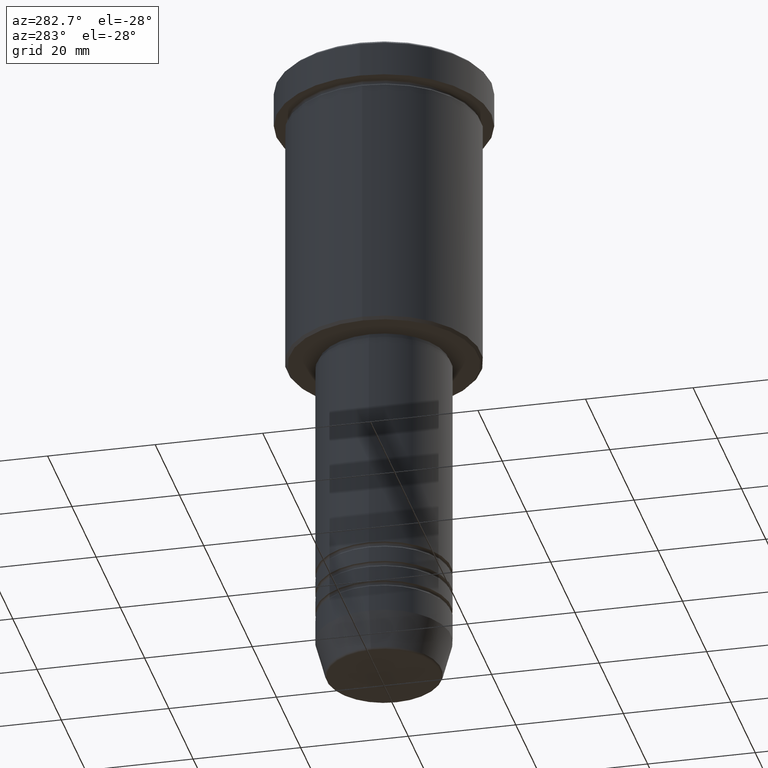
[diagram: clean part render]
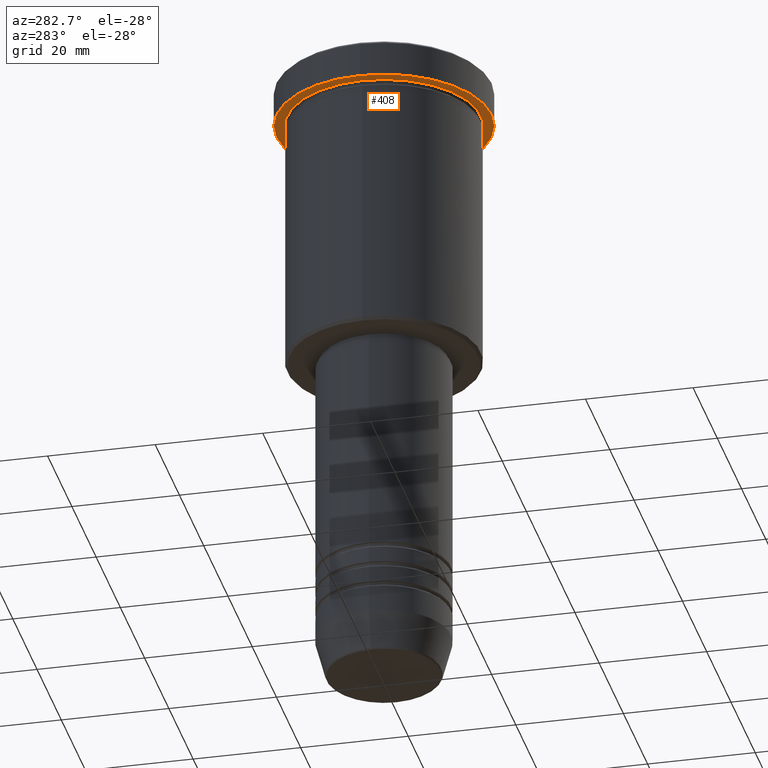
[diagram: same view with one face highlighted and labeled with its STEP entity id]
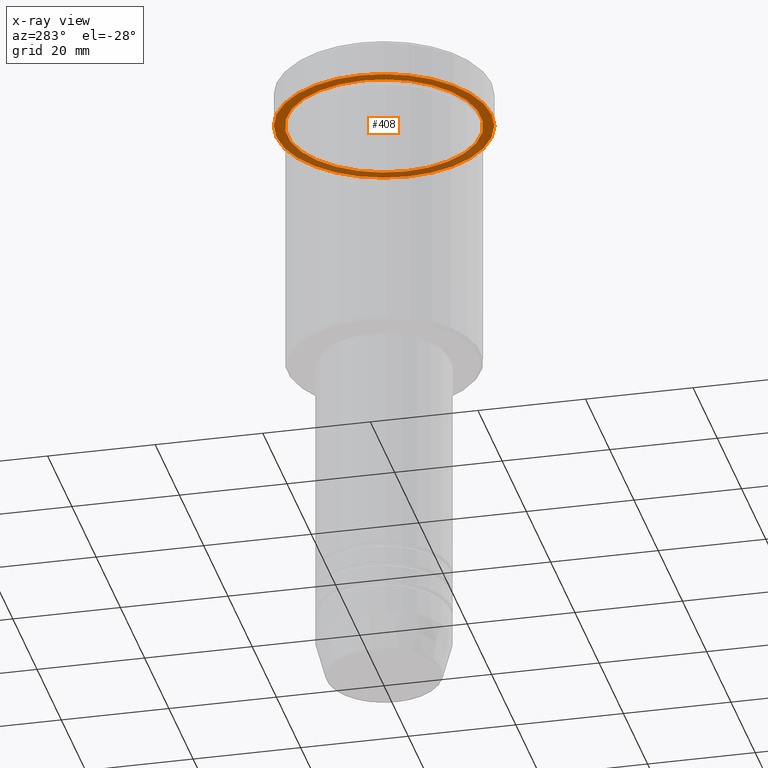
[diagram: x-ray of the same camera — body ghosted, the highlighted face saturated]
A machine part, auxiliary view. The second image highlights one B-rep face of the part: STEP entity #408.
The next image is the same camera in x-ray: the body ghosted, the highlighted face saturated — about 37% of this face is hidden behind the body in this view.
In plain terms, the highlighted planar face has unit normal (0, 0, -1).
Its self-contained STEP definition (entity closure, byte-faithful):
#3 = DIRECTION ( 'NONE',  ( 0.000000000000000000, 0.000000000000000000, -1.000000000000000000 ) ) ;
#56 = CARTESIAN_POINT ( 'NONE',  ( -20.00000000000000000, 2.449293598294706513E-15, -6.999999999999995559 ) ) ;
#80 = AXIS2_PLACEMENT_3D ( 'NONE', #677, #878, #241 ) ;
#83 = VERTEX_POINT ( 'NONE', #56 ) ;
#94 = EDGE_CURVE ( 'NONE', #252, #256, #784, .T. ) ;
#148 = DIRECTION ( 'NONE',  ( -0.000000000000000000, -0.000000000000000000, 1.000000000000000000 ) ) ;
#154 = PLANE ( 'NONE',  #1047 ) ;
#165 = DIRECTION ( 'NONE',  ( -1.000000000000000000, 0.000000000000000000, 0.000000000000000000 ) ) ;
#166 = CARTESIAN_POINT ( 'NONE',  ( 0.000000000000000000, 0.000000000000000000, -6.999999999999995559 ) ) ;
#241 = DIRECTION ( 'NONE',  ( 1.000000000000000000, 0.000000000000000000, 0.000000000000000000 ) ) ;
#248 = FACE_BOUND ( 'NONE', #996, .T. ) ;
#252 = VERTEX_POINT ( 'NONE', #528 ) ;
#256 = VERTEX_POINT ( 'NONE', #461 ) ;
#258 = DIRECTION ( 'NONE',  ( -0.000000000000000000, -0.000000000000000000, 1.000000000000000000 ) ) ;
#275 = ORIENTED_EDGE ( 'NONE', *, *, #390, .F. ) ;
#298 = EDGE_CURVE ( 'NONE', #256, #252, #1010, .T. ) ;
#329 = DIRECTION ( 'NONE',  ( -1.000000000000000000, 0.000000000000000000, 0.000000000000000000 ) ) ;
#337 = ORIENTED_EDGE ( 'NONE', *, *, #746, .F. ) ;
#360 = DIRECTION ( 'NONE',  ( -1.000000000000000000, 0.000000000000000000, -0.000000000000000000 ) ) ;
#371 = CARTESIAN_POINT ( 'NONE',  ( 20.00000000000000000, 0.000000000000000000, -6.999999999999995559 ) ) ;
#390 = EDGE_CURVE ( 'NONE', #1121, #83, #807, .T. ) ;
#408 = ADVANCED_FACE ( 'NONE', ( #248, #959 ), #154, .T. ) ;
#461 = CARTESIAN_POINT ( 'NONE',  ( 18.00000000000000000, 2.204364238465235428E-15, -6.999999999999995559 ) ) ;
#477 = AXIS2_PLACEMENT_3D ( 'NONE', #759, #258, #329 ) ;
#497 = AXIS2_PLACEMENT_3D ( 'NONE', #778, #148, #689 ) ;
#513 = CARTESIAN_POINT ( 'NONE',  ( 0.000000000000000000, 20.00000000000000000, -6.999999999999995559 ) ) ;
#528 = CARTESIAN_POINT ( 'NONE',  ( -18.00000000000000000, 0.000000000000000000, -6.999999999999995559 ) ) ;
#677 = CARTESIAN_POINT ( 'NONE',  ( 0.000000000000000000, 0.000000000000000000, -6.999999999999995559 ) ) ;
#689 = DIRECTION ( 'NONE',  ( 1.000000000000000000, 0.000000000000000000, 0.000000000000000000 ) ) ;
#746 = EDGE_CURVE ( 'NONE', #83, #1121, #847, .T. ) ;
#756 = DIRECTION ( 'NONE',  ( -0.000000000000000000, -0.000000000000000000, 1.000000000000000000 ) ) ;
#759 = CARTESIAN_POINT ( 'NONE',  ( 0.000000000000000000, 0.000000000000000000, -6.999999999999995559 ) ) ;
#778 = CARTESIAN_POINT ( 'NONE',  ( 0.000000000000000000, 0.000000000000000000, -6.999999999999995559 ) ) ;
#784 = CIRCLE ( 'NONE', #477, 18.00000000000000000 ) ;
#807 = CIRCLE ( 'NONE', #497, 20.00000000000000000 ) ;
#847 = CIRCLE ( 'NONE', #80, 20.00000000000000000 ) ;
#878 = DIRECTION ( 'NONE',  ( -0.000000000000000000, -0.000000000000000000, 1.000000000000000000 ) ) ;
#879 = EDGE_LOOP ( 'NONE', ( #275, #337 ) ) ;
#959 = FACE_OUTER_BOUND ( 'NONE', #879, .T. ) ;
#996 = EDGE_LOOP ( 'NONE', ( #1053, #1068 ) ) ;
#1010 = CIRCLE ( 'NONE', #1126, 18.00000000000000000 ) ;
#1047 = AXIS2_PLACEMENT_3D ( 'NONE', #513, #3, #360 ) ;
#1053 = ORIENTED_EDGE ( 'NONE', *, *, #94, .T. ) ;
#1068 = ORIENTED_EDGE ( 'NONE', *, *, #298, .T. ) ;
#1121 = VERTEX_POINT ( 'NONE', #371 ) ;
#1126 = AXIS2_PLACEMENT_3D ( 'NONE', #166, #756, #165 ) ;